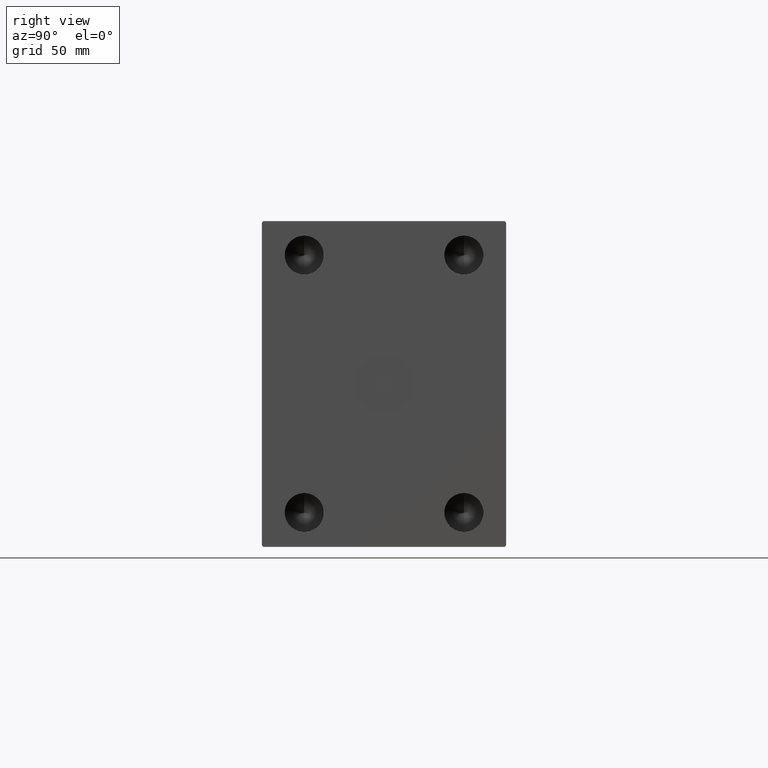
[diagram: clean part render]
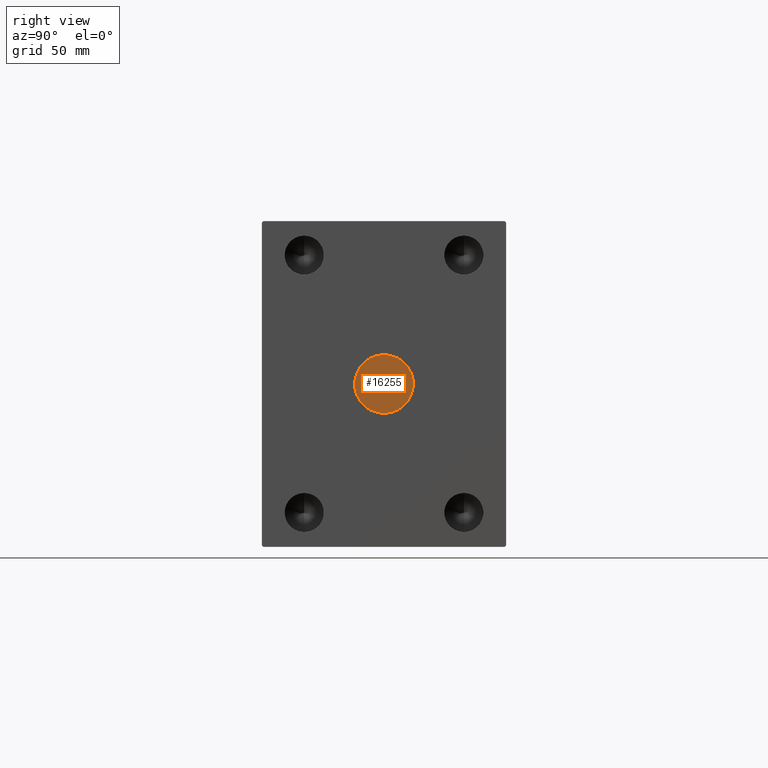
[diagram: same view with one face highlighted and labeled with its STEP entity id]
A machine part, right view. The second image highlights one B-rep face of the part: STEP entity #16255.
In plain terms, the highlighted planar face has unit normal (1, 0, 0).
Its self-contained STEP definition (entity closure, byte-faithful):
#1540 = CARTESIAN_POINT ( 'NONE',  ( 357.8000000000000114, 2.204364238465235428E-15, 18.00000000000000000 ) ) ;
#2876 = AXIS2_PLACEMENT_3D ( 'NONE', #18380, #4375, #5032 ) ;
#4375 = DIRECTION ( 'NONE',  ( 1.000000000000000000, 0.000000000000000000, 0.000000000000000000 ) ) ;
#5032 = DIRECTION ( 'NONE',  ( 0.000000000000000000, 0.000000000000000000, -1.000000000000000000 ) ) ;
#5152 = ORIENTED_EDGE ( 'NONE', *, *, #39773, .T. ) ;
#7839 = CARTESIAN_POINT ( 'NONE',  ( 357.8000000000000114, 0.000000000000000000, -18.00000000000000000 ) ) ;
#7902 = DIRECTION ( 'NONE',  ( 0.000000000000000000, 0.000000000000000000, -1.000000000000000000 ) ) ;
#8245 = ORIENTED_EDGE ( 'NONE', *, *, #38240, .T. ) ;
#8538 = AXIS2_PLACEMENT_3D ( 'NONE', #9592, #39619, #19370 ) ;
#9592 = CARTESIAN_POINT ( 'NONE',  ( 357.8000000000000114, 0.000000000000000000, 0.000000000000000000 ) ) ;
#10803 = PLANE ( 'NONE',  #15278 ) ;
#13929 = CARTESIAN_POINT ( 'NONE',  ( 357.8000000000000114, 0.000000000000000000, 0.000000000000000000 ) ) ;
#15278 = AXIS2_PLACEMENT_3D ( 'NONE', #13929, #41487, #7902 ) ;
#15681 = CIRCLE ( 'NONE', #2876, 18.00000000000000000 ) ;
#16255 = ADVANCED_FACE ( 'NONE', ( #20803 ), #10803, .T. ) ;
#18380 = CARTESIAN_POINT ( 'NONE',  ( 357.8000000000000114, 0.000000000000000000, 0.000000000000000000 ) ) ;
#19370 = DIRECTION ( 'NONE',  ( 0.000000000000000000, 0.000000000000000000, -1.000000000000000000 ) ) ;
#20803 = FACE_OUTER_BOUND ( 'NONE', #31969, .T. ) ;
#28534 = VERTEX_POINT ( 'NONE', #7839 ) ;
#29849 = CIRCLE ( 'NONE', #8538, 18.00000000000000000 ) ;
#31969 = EDGE_LOOP ( 'NONE', ( #5152, #8245 ) ) ;
#37252 = VERTEX_POINT ( 'NONE', #1540 ) ;
#38240 = EDGE_CURVE ( 'NONE', #37252, #28534, #29849, .T. ) ;
#39619 = DIRECTION ( 'NONE',  ( 1.000000000000000000, 0.000000000000000000, 0.000000000000000000 ) ) ;
#39773 = EDGE_CURVE ( 'NONE', #28534, #37252, #15681, .T. ) ;
#41487 = DIRECTION ( 'NONE',  ( 1.000000000000000000, 0.000000000000000000, 0.000000000000000000 ) ) ;